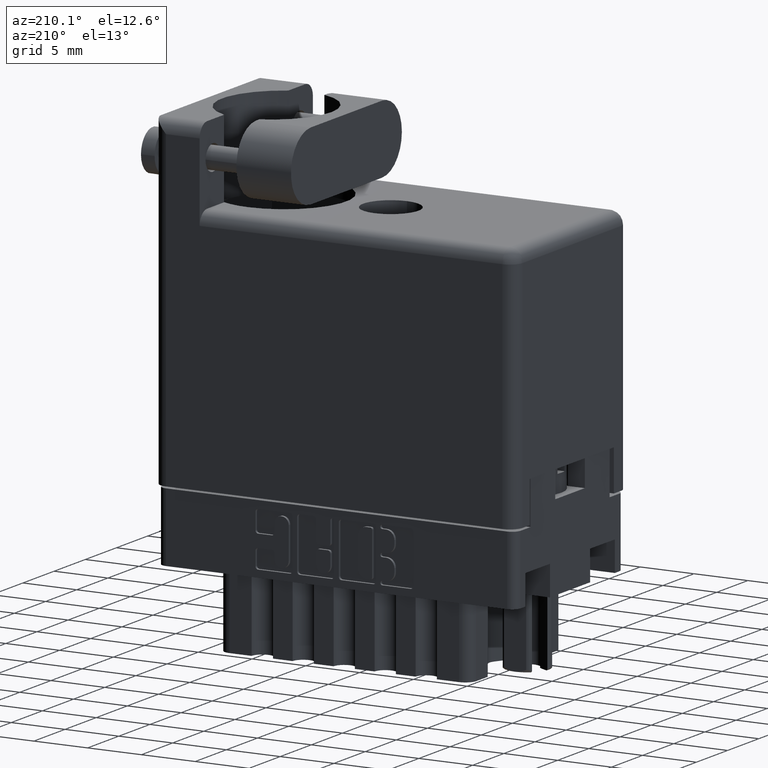
[diagram: clean part render]
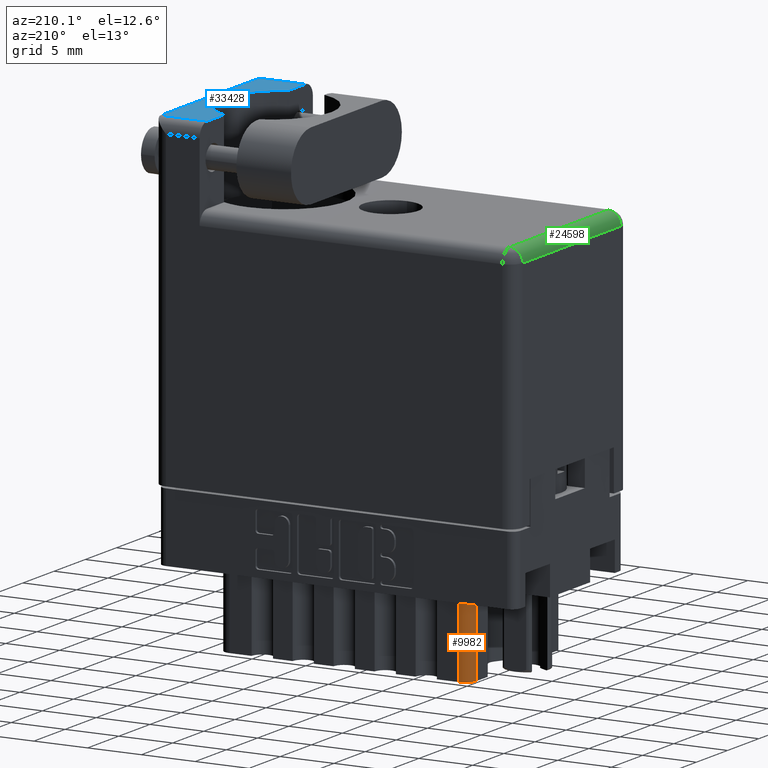
[diagram: same view with three faces highlighted in distinct colors, each labeled with its STEP entity id]
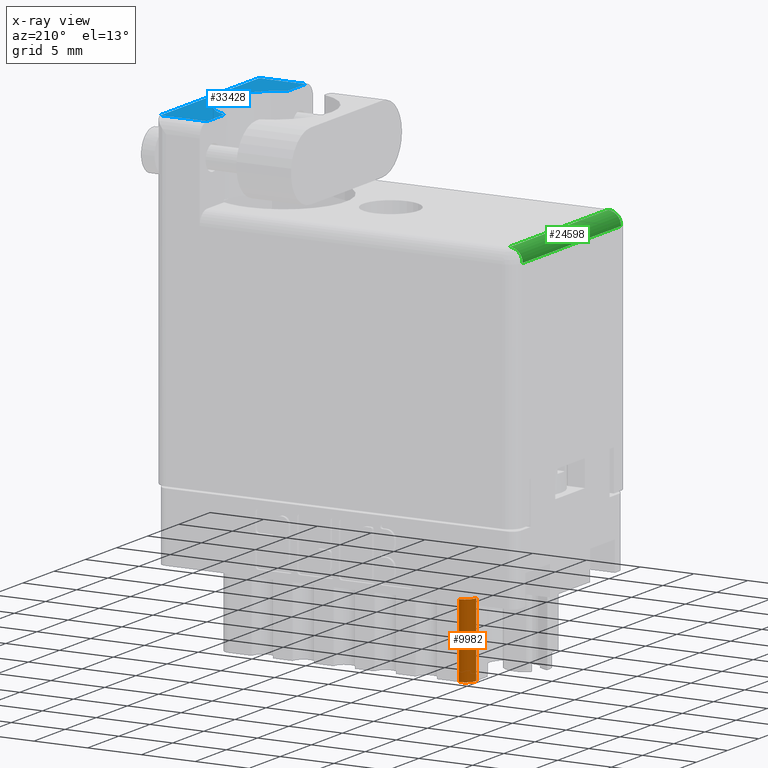
[diagram: x-ray of the same camera — body ghosted, the three highlighted faces saturated]
A machine part, auxiliary view with three faces highlighted in distinct colors.
The next image is the same camera in x-ray (body ghosted, the three faces saturated) — at least one of them is partly hidden behind the body in this view.
Their STEP definitions:

[orange] entity #9982 — the highlighted cylindrical surface (edge-blend (fillet) strip) has radius 1.016 mm, axis along (0, 0, 1).
#394 = AXIS2_PLACEMENT_3D ( 'NONE', #10428, #19022, #7857 ) ;
#654 = ORIENTED_EDGE ( 'NONE', *, *, #19464, .F. ) ;
#1565 = DIRECTION ( 'NONE',  ( -1.000000000000000000, 0.0000000000000000000, 0.0000000000000000000 ) ) ;
#1932 = EDGE_CURVE ( 'NONE', #26933, #28962, #26472, .T. ) ;
#3443 = LINE ( 'NONE', #20377, #32115 ) ;
#5900 = EDGE_LOOP ( 'NONE', ( #654, #27194, #28945, #6625 ) ) ;
#6625 = ORIENTED_EDGE ( 'NONE', *, *, #20917, .F. ) ;
#6666 = DIRECTION ( 'NONE',  ( 0.0000000000000000000, 0.0000000000000000000, -1.000000000000000000 ) ) ;
#7208 = CARTESIAN_POINT ( 'NONE',  ( -0.4200000000000001500, 0.2939999999999999800, -0.5290000000000000300 ) ) ;
#7857 = DIRECTION ( 'NONE',  ( -1.000000000000000000, 0.0000000000000000000, 0.0000000000000000000 ) ) ;
#9982 = ADVANCED_FACE ( 'NONE', ( #17419 ), #26973, .T. ) ;
#10133 = EDGE_CURVE ( 'NONE', #28962, #34914, #11348, .T. ) ;
#10428 = CARTESIAN_POINT ( 'NONE',  ( -0.4200000000000001500, 0.2540000000000000000, -0.7980000000000000400 ) ) ;
#11348 = LINE ( 'NONE', #31742, #23038 ) ;
#12190 = DIRECTION ( 'NONE',  ( -0.0000000000000000000, -0.0000000000000000000, 1.000000000000000000 ) ) ;
#14765 = AXIS2_PLACEMENT_3D ( 'NONE', #18203, #23883, #1565 ) ;
#17419 = FACE_OUTER_BOUND ( 'NONE', #5900, .T. ) ;
#18203 = CARTESIAN_POINT ( 'NONE',  ( -0.4200000000000001500, 0.2540000000000000000, -0.5290000000000000300 ) ) ;
#19022 = DIRECTION ( 'NONE',  ( 0.0000000000000000000, 0.0000000000000000000, -1.000000000000000000 ) ) ;
#19379 = VERTEX_POINT ( 'NONE', #32145 ) ;
#19464 = EDGE_CURVE ( 'NONE', #34914, #19379, #25663, .T. ) ;
#19852 = DIRECTION ( 'NONE',  ( 0.0000000000000000000, 0.0000000000000000000, 1.000000000000000000 ) ) ;
#20377 = CARTESIAN_POINT ( 'NONE',  ( -0.4600000000000001300, 0.2540000000000000000, -0.7980000000000000400 ) ) ;
#20917 = EDGE_CURVE ( 'NONE', #19379, #26933, #3443, .T. ) ;
#22738 = DIRECTION ( 'NONE',  ( 1.000000000000000000, 0.0000000000000000000, 0.0000000000000000000 ) ) ;
#23038 = VECTOR ( 'NONE', #12190, 39.37007874015748100 ) ;
#23883 = DIRECTION ( 'NONE',  ( -0.0000000000000000000, -0.0000000000000000000, 1.000000000000000000 ) ) ;
#23913 = CARTESIAN_POINT ( 'NONE',  ( -0.4200000000000001500, 0.2939999999999999800, -0.7980000000000000400 ) ) ;
#25663 = CIRCLE ( 'NONE', #14765, 0.03999999999999998000 ) ;
#26472 = CIRCLE ( 'NONE', #394, 0.03999999999999998000 ) ;
#26933 = VERTEX_POINT ( 'NONE', #30868 ) ;
#26973 = CYLINDRICAL_SURFACE ( 'NONE', #33177, 0.03999999999999998000 ) ;
#27194 = ORIENTED_EDGE ( 'NONE', *, *, #10133, .F. ) ;
#28945 = ORIENTED_EDGE ( 'NONE', *, *, #1932, .F. ) ;
#28962 = VERTEX_POINT ( 'NONE', #23913 ) ;
#30868 = CARTESIAN_POINT ( 'NONE',  ( -0.4600000000000001300, 0.2540000000000000000, -0.7980000000000000400 ) ) ;
#31015 = CARTESIAN_POINT ( 'NONE',  ( -0.4200000000000001500, 0.2540000000000000000, -0.5290000000000000300 ) ) ;
#31742 = CARTESIAN_POINT ( 'NONE',  ( -0.4200000000000001500, 0.2939999999999999800, -0.5290000000000000300 ) ) ;
#32115 = VECTOR ( 'NONE', #6666, 39.37007874015748100 ) ;
#32145 = CARTESIAN_POINT ( 'NONE',  ( -0.4600000000000001300, 0.2540000000000000000, -0.5290000000000000300 ) ) ;
#33177 = AXIS2_PLACEMENT_3D ( 'NONE', #31015, #19852, #22738 ) ;
#34914 = VERTEX_POINT ( 'NONE', #7208 ) ;

[blue] entity #33428 — the highlighted planar face has unit normal (0, 0, 1).
#353 = CARTESIAN_POINT ( 'NONE',  ( 1.155000000000000000, 1.189999999999999900, -0.6680000000000000400 ) ) ;
#2533 = VERTEX_POINT ( 'NONE', #12896 ) ;
#3159 = EDGE_CURVE ( 'NONE', #31523, #2533, #23738, .T. ) ;
#3395 = VECTOR ( 'NONE', #16362, 39.37007874015748100 ) ;
#4878 = CARTESIAN_POINT ( 'NONE',  ( 1.325000000000000000, 1.189999999999999700, 0.0000000000000000000 ) ) ;
#5247 = CARTESIAN_POINT ( 'NONE',  ( 1.052999999999999900, 1.189999999999999900, -0.3574999999999999800 ) ) ;
#7639 = VERTEX_POINT ( 'NONE', #31023 ) ;
#7823 = ORIENTED_EDGE ( 'NONE', *, *, #35434, .T. ) ;
#9342 = CARTESIAN_POINT ( 'NONE',  ( 1.325000000000000000, 1.189999999999999900, -0.6680000000000000400 ) ) ;
#9510 = AXIS2_PLACEMENT_3D ( 'NONE', #5247, #27666, #30318 ) ;
#9943 = ORIENTED_EDGE ( 'NONE', *, *, #3159, .F. ) ;
#10075 = DIRECTION ( 'NONE',  ( 0.0000000000000000000, 1.000000000000000000, 0.0000000000000000000 ) ) ;
#10078 = DIRECTION ( 'NONE',  ( 0.0000000000000000000, 0.0000000000000000000, 1.000000000000000000 ) ) ;
#10869 = CARTESIAN_POINT ( 'NONE',  ( 1.155000000000000000, 1.189999999999999900, -0.1547070020932675400 ) ) ;
#11117 = CARTESIAN_POINT ( 'NONE',  ( 1.325000000000000000, 1.189999999999999900, -0.6680000000000000400 ) ) ;
#12896 = CARTESIAN_POINT ( 'NONE',  ( 1.155000000000000000, 1.189999999999999900, -0.5602929979067323700 ) ) ;
#14204 = EDGE_CURVE ( 'NONE', #7639, #26008, #35042, .T. ) ;
#15333 = AXIS2_PLACEMENT_3D ( 'NONE', #23878, #10075, #15636 ) ;
#15636 = DIRECTION ( 'NONE',  ( 0.0000000000000000000, 0.0000000000000000000, 1.000000000000000000 ) ) ;
#15935 = FACE_OUTER_BOUND ( 'NONE', #28341, .T. ) ;
#16362 = DIRECTION ( 'NONE',  ( 0.0000000000000000000, 0.0000000000000000000, -1.000000000000000000 ) ) ;
#17198 = LINE ( 'NONE', #27237, #24173 ) ;
#17577 = DIRECTION ( 'NONE',  ( -1.000000000000000000, 0.0000000000000000000, 0.0000000000000000000 ) ) ;
#20842 = VECTOR ( 'NONE', #17577, 39.37007874015748100 ) ;
#20893 = EDGE_CURVE ( 'NONE', #26999, #30709, #28194, .T. ) ;
#21627 = ORIENTED_EDGE ( 'NONE', *, *, #22804, .T. ) ;
#21765 = DIRECTION ( 'NONE',  ( 1.000000000000000000, 0.0000000000000000000, 0.0000000000000000000 ) ) ;
#22804 = EDGE_CURVE ( 'NONE', #30709, #2533, #23714, .T. ) ;
#22891 = CARTESIAN_POINT ( 'NONE',  ( 1.325000000000000000, 1.189999999999999700, -0.04699999999999993800 ) ) ;
#23714 = LINE ( 'NONE', #23882, #28941 ) ;
#23738 = CIRCLE ( 'NONE', #9510, 0.2270000000000000100 ) ;
#23878 = CARTESIAN_POINT ( 'NONE',  ( 1.325000000000000000, 1.189999999999999900, -0.7149999999999999700 ) ) ;
#23882 = CARTESIAN_POINT ( 'NONE',  ( 1.155000000000000000, 1.189999999999999700, 6.829619984160658000E-017 ) ) ;
#24173 = VECTOR ( 'NONE', #30487, 39.37007874015748100 ) ;
#24269 = LINE ( 'NONE', #4878, #3395 ) ;
#24428 = CARTESIAN_POINT ( 'NONE',  ( 1.325000000000000000, 1.189999999999999700, -0.04699999999999993800 ) ) ;
#24986 = ORIENTED_EDGE ( 'NONE', *, *, #14204, .T. ) ;
#25637 = EDGE_CURVE ( 'NONE', #31523, #7639, #17198, .T. ) ;
#26008 = VERTEX_POINT ( 'NONE', #22891 ) ;
#26999 = VERTEX_POINT ( 'NONE', #11117 ) ;
#27135 = ORIENTED_EDGE ( 'NONE', *, *, #25637, .T. ) ;
#27237 = CARTESIAN_POINT ( 'NONE',  ( 1.155000000000000000, 1.189999999999999700, 6.829619984160658000E-017 ) ) ;
#27666 = DIRECTION ( 'NONE',  ( 0.0000000000000000000, 1.000000000000000000, 0.0000000000000000000 ) ) ;
#28194 = LINE ( 'NONE', #9342, #20842 ) ;
#28341 = EDGE_LOOP ( 'NONE', ( #7823, #30097, #21627, #9943, #27135, #24986 ) ) ;
#28941 = VECTOR ( 'NONE', #10078, 39.37007874015748100 ) ;
#30097 = ORIENTED_EDGE ( 'NONE', *, *, #20893, .T. ) ;
#30318 = DIRECTION ( 'NONE',  ( 0.0000000000000000000, 0.0000000000000000000, 1.000000000000000000 ) ) ;
#30487 = DIRECTION ( 'NONE',  ( 0.0000000000000000000, 0.0000000000000000000, 1.000000000000000000 ) ) ;
#30709 = VERTEX_POINT ( 'NONE', #353 ) ;
#31023 = CARTESIAN_POINT ( 'NONE',  ( 1.155000000000000000, 1.189999999999999700, -0.04699999999999993800 ) ) ;
#31523 = VERTEX_POINT ( 'NONE', #10869 ) ;
#32268 = PLANE ( 'NONE',  #15333 ) ;
#33428 = ADVANCED_FACE ( 'NONE', ( #15935 ), #32268, .T. ) ;
#34144 = VECTOR ( 'NONE', #21765, 39.37007874015748100 ) ;
#35042 = LINE ( 'NONE', #24428, #34144 ) ;
#35434 = EDGE_CURVE ( 'NONE', #26008, #26999, #24269, .T. ) ;

[green] entity #24598 — the highlighted cylindrical surface (edge-blend (fillet) strip) has radius 1.1938 mm, axis along (0, -1, 0).
#868 = EDGE_CURVE ( 'NONE', #4008, #3554, #33074, .T. ) ;
#2230 = EDGE_LOOP ( 'NONE', ( #9969, #34428, #15759, #16695 ) ) ;
#3066 = LINE ( 'NONE', #32992, #35230 ) ;
#3554 = VERTEX_POINT ( 'NONE', #9099 ) ;
#4008 = VERTEX_POINT ( 'NONE', #30766 ) ;
#7083 = CIRCLE ( 'NONE', #22612, 0.04700000000000000700 ) ;
#7087 = DIRECTION ( 'NONE',  ( 0.0000000000000000000, 0.0000000000000000000, -1.000000000000000000 ) ) ;
#7221 = DIRECTION ( 'NONE',  ( -0.0000000000000000000, -0.0000000000000000000, -1.000000000000000000 ) ) ;
#7330 = CARTESIAN_POINT ( 'NONE',  ( 0.04700000000000006900, 0.8590000000000001000, -0.6680000000000000400 ) ) ;
#7934 = AXIS2_PLACEMENT_3D ( 'NONE', #27778, #22199, #8627 ) ;
#8627 = DIRECTION ( 'NONE',  ( 1.000000000000000000, 0.0000000000000000000, 0.0000000000000000000 ) ) ;
#9099 = CARTESIAN_POINT ( 'NONE',  ( 0.04700000000000006900, 0.9059999999999996900, -0.04700000000000000700 ) ) ;
#9724 = EDGE_CURVE ( 'NONE', #11136, #3554, #3066, .T. ) ;
#9969 = ORIENTED_EDGE ( 'NONE', *, *, #868, .T. ) ;
#10269 = CARTESIAN_POINT ( 'NONE',  ( 0.04700000000000006900, 0.8590000000000001000, -0.04700000000000000700 ) ) ;
#11136 = VERTEX_POINT ( 'NONE', #24975 ) ;
#13133 = LINE ( 'NONE', #29620, #23964 ) ;
#15759 = ORIENTED_EDGE ( 'NONE', *, *, #28694, .F. ) ;
#16347 = DIRECTION ( 'NONE',  ( 0.0000000000000000000, 0.0000000000000000000, 1.000000000000000000 ) ) ;
#16695 = ORIENTED_EDGE ( 'NONE', *, *, #28862, .F. ) ;
#20124 = FACE_OUTER_BOUND ( 'NONE', #2230, .T. ) ;
#22199 = DIRECTION ( 'NONE',  ( 0.0000000000000000000, 0.0000000000000000000, 1.000000000000000000 ) ) ;
#22612 = AXIS2_PLACEMENT_3D ( 'NONE', #7330, #7087, #35129 ) ;
#23964 = VECTOR ( 'NONE', #29383, 39.37007874015748100 ) ;
#24598 = ADVANCED_FACE ( 'NONE', ( #20124 ), #29687, .T. ) ;
#24813 = AXIS2_PLACEMENT_3D ( 'NONE', #10269, #7221, #26629 ) ;
#24975 = CARTESIAN_POINT ( 'NONE',  ( 0.04700000000000006900, 0.9060000000000002500, -0.6680000000000000400 ) ) ;
#26629 = DIRECTION ( 'NONE',  ( 1.000000000000000000, 0.0000000000000000000, 0.0000000000000000000 ) ) ;
#27778 = CARTESIAN_POINT ( 'NONE',  ( 0.04700000000000006900, 0.8590000000000001000, -0.7150000000000001900 ) ) ;
#28694 = EDGE_CURVE ( 'NONE', #30132, #11136, #7083, .T. ) ;
#28862 = EDGE_CURVE ( 'NONE', #4008, #30132, #13133, .T. ) ;
#29383 = DIRECTION ( 'NONE',  ( -0.0000000000000000000, -0.0000000000000000000, -1.000000000000000000 ) ) ;
#29620 = CARTESIAN_POINT ( 'NONE',  ( 0.0000000000000000000, 0.8590000000000001000, -0.7150000000000001900 ) ) ;
#29687 = CYLINDRICAL_SURFACE ( 'NONE', #7934, 0.04700000000000000700 ) ;
#30132 = VERTEX_POINT ( 'NONE', #34247 ) ;
#30766 = CARTESIAN_POINT ( 'NONE',  ( 0.0000000000000000000, 0.8590000000000001000, -0.04700000000000000700 ) ) ;
#32992 = CARTESIAN_POINT ( 'NONE',  ( 0.04700000000000006900, 0.9060000000000002500, -0.7150000000000001900 ) ) ;
#33074 = CIRCLE ( 'NONE', #24813, 0.04700000000000000700 ) ;
#34247 = CARTESIAN_POINT ( 'NONE',  ( 0.0000000000000000000, 0.8590000000000001000, -0.6680000000000000400 ) ) ;
#34428 = ORIENTED_EDGE ( 'NONE', *, *, #9724, .F. ) ;
#35129 = DIRECTION ( 'NONE',  ( -1.000000000000000000, 0.0000000000000000000, 0.0000000000000000000 ) ) ;
#35230 = VECTOR ( 'NONE', #16347, 39.37007874015748100 ) ;